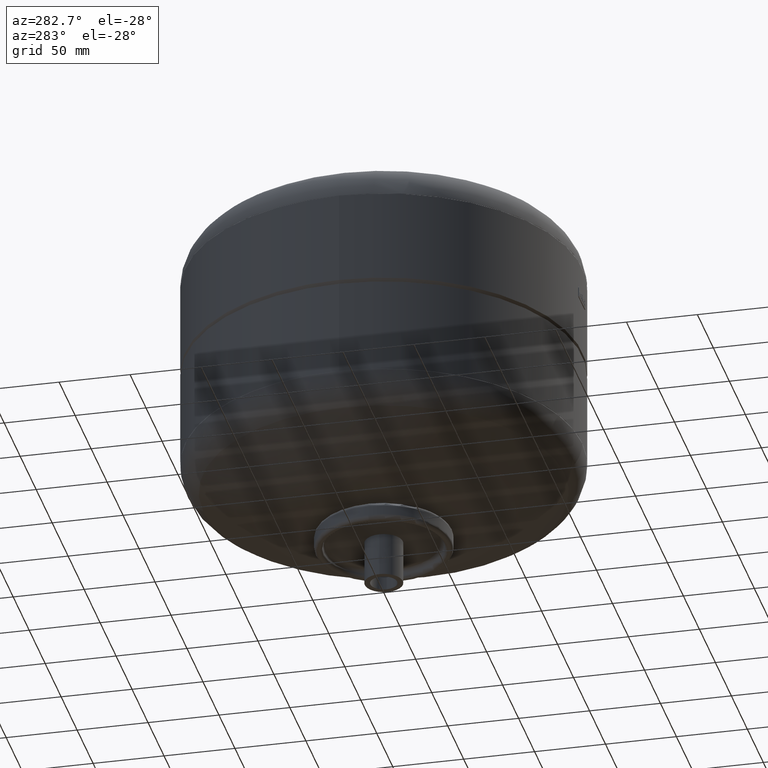
[diagram: clean part render]
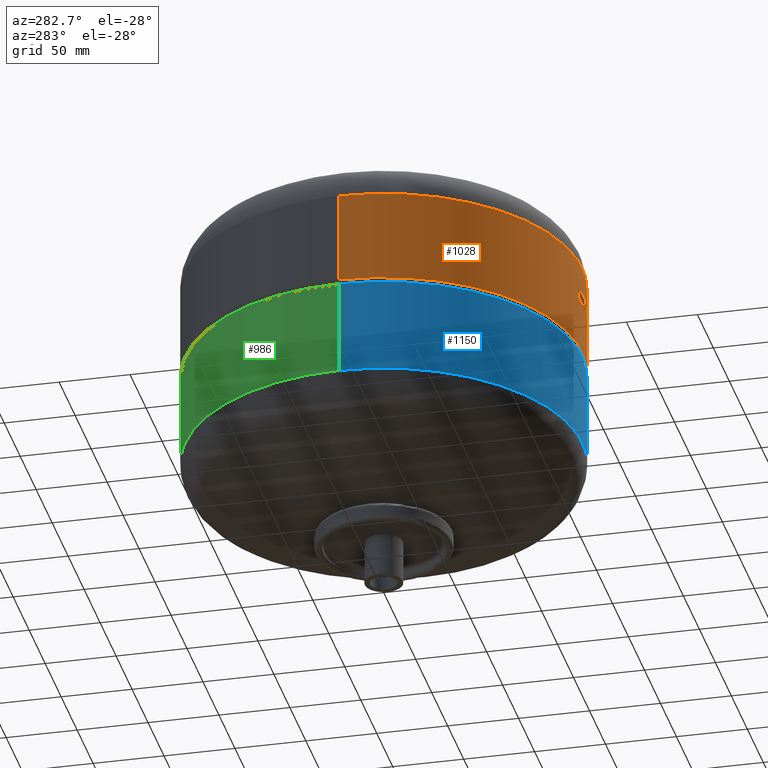
[diagram: same view with three faces highlighted in distinct colors, each labeled with its STEP entity id]
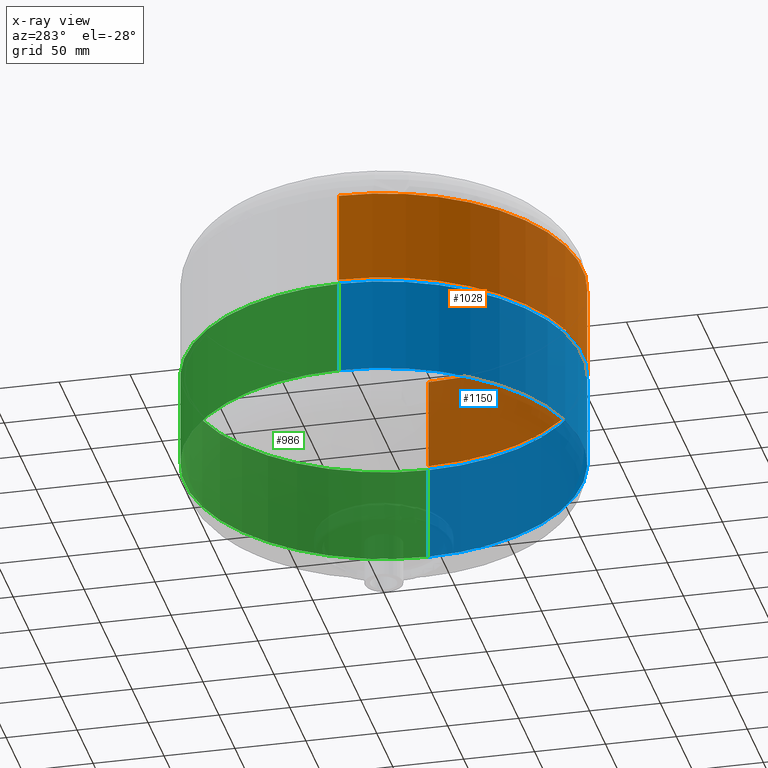
[diagram: x-ray of the same camera — body ghosted, the three highlighted faces saturated]
A machine part, auxiliary view with three faces highlighted in distinct colors.
The next image is the same camera in x-ray (body ghosted, the three faces saturated) — at least one of them is partly hidden behind the body in this view.
Their STEP definitions:

[orange] entity #1028 — the highlighted cylindrical surface (partial cylindrical patch) has radius 140 mm, axis along (0, 0, 1).
#987=CARTESIAN_POINT('',(0.0,0.0,224.0));
#988=DIRECTION('',(0.0,0.0,1.0));
#989=DIRECTION('',(1.0,0.0,0.0));
#990=AXIS2_PLACEMENT_3D('',#987,#988,#989);
#991=CYLINDRICAL_SURFACE('',#990,140.0);
#992=CARTESIAN_POINT('',(140.0,0.0,229.0));
#993=VERTEX_POINT('',#992);
#994=CARTESIAN_POINT('',(140.0,0.0,163.499999999999970));
#995=VERTEX_POINT('',#994);
#996=CARTESIAN_POINT('',(140.0,0.0,229.0));
#997=DIRECTION('',(0.0,0.0,-1.0));
#998=VECTOR('',#997,65.500000000000028);
#999=LINE('',#996,#998);
#1000=EDGE_CURVE('',#993,#995,#999,.T.);
#1001=ORIENTED_EDGE('',*,*,#1000,.F.);
#1002=CARTESIAN_POINT('',(-140.0,-1.714449E-014,229.0));
#1003=VERTEX_POINT('',#1002);
#1004=CARTESIAN_POINT('',(0.0,0.0,229.0));
#1005=DIRECTION('',(0.0,0.0,-1.0));
#1006=DIRECTION('',(1.0,0.0,0.0));
#1007=AXIS2_PLACEMENT_3D('',#1004,#1005,#1006);
#1008=CIRCLE('',#1007,140.0);
#1009=EDGE_CURVE('',#993,#1003,#1008,.T.);
#1010=ORIENTED_EDGE('',*,*,#1009,.T.);
#1011=CARTESIAN_POINT('',(-139.999999999999970,-1.714449E-014,163.500000000000000));
#1012=VERTEX_POINT('',#1011);
#1013=CARTESIAN_POINT('',(-140.0,-1.714449E-014,229.0));
#1014=DIRECTION('',(0.0,0.0,-1.0));
#1015=VECTOR('',#1014,65.500000000000000);
#1016=LINE('',#1013,#1015);
#1017=EDGE_CURVE('',#1003,#1012,#1016,.T.);
#1018=ORIENTED_EDGE('',*,*,#1017,.T.);
#1019=CARTESIAN_POINT('',(0.0,0.0,163.499999999999970));
#1020=DIRECTION('',(0.0,0.0,1.0));
#1021=DIRECTION('',(1.0,0.0,0.0));
#1022=AXIS2_PLACEMENT_3D('',#1019,#1020,#1021);
#1023=CIRCLE('',#1022,140.0);
#1024=EDGE_CURVE('',#1012,#995,#1023,.T.);
#1025=ORIENTED_EDGE('',*,*,#1024,.T.);
#1026=EDGE_LOOP('',(#1001,#1010,#1018,#1025));
#1027=FACE_OUTER_BOUND('',#1026,.T.);
#1028=ADVANCED_FACE('',(#1027),#991,.T.);

[blue] entity #1150 — the highlighted cylindrical surface (partial cylindrical patch) has radius 140 mm, axis along (0, 0, -1).
#950=CARTESIAN_POINT('',(139.999999999999910,0.0,93.0));
#951=VERTEX_POINT('',#950);
#952=CARTESIAN_POINT('',(139.999999999999970,0.0,160.499999999999970));
#953=VERTEX_POINT('',#952);
#954=CARTESIAN_POINT('',(139.999999999999910,0.0,93.0));
#955=DIRECTION('',(0.0,0.0,1.0));
#956=VECTOR('',#955,67.499999999999972);
#957=LINE('',#954,#956);
#958=EDGE_CURVE('',#951,#953,#957,.T.);
#960=CARTESIAN_POINT('',(-139.999999999999910,1.714449E-014,93.0));
#961=VERTEX_POINT('',#960);
#969=CARTESIAN_POINT('',(-139.999999999999910,1.714449E-014,160.499999999999970));
#970=VERTEX_POINT('',#969);
#971=CARTESIAN_POINT('',(-139.999999999999910,1.714449E-014,93.0));
#972=DIRECTION('',(0.0,0.0,1.0));
#973=VECTOR('',#972,67.499999999999972);
#974=LINE('',#971,#973);
#975=EDGE_CURVE('',#961,#970,#974,.T.);
#1067=CARTESIAN_POINT('',(0.0,0.0,160.499999999999970));
#1068=DIRECTION('',(0.0,0.0,1.0));
#1069=DIRECTION('',(1.0,0.0,0.0));
#1070=AXIS2_PLACEMENT_3D('',#1067,#1068,#1069);
#1071=CIRCLE('',#1070,139.999999999999970);
#1072=EDGE_CURVE('',#970,#953,#1071,.T.);
#1133=CARTESIAN_POINT('',(0.0,0.0,98.0));
#1134=DIRECTION('',(0.0,0.0,-1.0));
#1135=DIRECTION('',(1.0,0.0,0.0));
#1136=AXIS2_PLACEMENT_3D('',#1133,#1134,#1135);
#1137=CYLINDRICAL_SURFACE('',#1136,139.999999999999910);
#1138=ORIENTED_EDGE('',*,*,#958,.T.);
#1139=ORIENTED_EDGE('',*,*,#1072,.F.);
#1140=ORIENTED_EDGE('',*,*,#975,.F.);
#1141=CARTESIAN_POINT('',(0.0,0.0,93.0));
#1142=DIRECTION('',(0.0,0.0,1.0));
#1143=DIRECTION('',(1.0,0.0,0.0));
#1144=AXIS2_PLACEMENT_3D('',#1141,#1142,#1143);
#1145=CIRCLE('',#1144,139.999999999999910);
#1146=EDGE_CURVE('',#961,#951,#1145,.T.);
#1147=ORIENTED_EDGE('',*,*,#1146,.T.);
#1148=EDGE_LOOP('',(#1138,#1139,#1140,#1147));
#1149=FACE_OUTER_BOUND('',#1148,.T.);
#1150=ADVANCED_FACE('',(#1149),#1137,.T.);

[green] entity #986 — the highlighted cylindrical surface (partial cylindrical patch) has radius 140 mm, axis along (0, 0, -1).
#945=CARTESIAN_POINT('',(0.0,0.0,98.0));
#946=DIRECTION('',(0.0,0.0,-1.0));
#947=DIRECTION('',(1.0,0.0,0.0));
#948=AXIS2_PLACEMENT_3D('',#945,#946,#947);
#949=CYLINDRICAL_SURFACE('',#948,139.999999999999910);
#950=CARTESIAN_POINT('',(139.999999999999910,0.0,93.0));
#951=VERTEX_POINT('',#950);
#952=CARTESIAN_POINT('',(139.999999999999970,0.0,160.499999999999970));
#953=VERTEX_POINT('',#952);
#954=CARTESIAN_POINT('',(139.999999999999910,0.0,93.0));
#955=DIRECTION('',(0.0,0.0,1.0));
#956=VECTOR('',#955,67.499999999999972);
#957=LINE('',#954,#956);
#958=EDGE_CURVE('',#951,#953,#957,.T.);
#959=ORIENTED_EDGE('',*,*,#958,.F.);
#960=CARTESIAN_POINT('',(-139.999999999999910,1.714449E-014,93.0));
#961=VERTEX_POINT('',#960);
#962=CARTESIAN_POINT('',(0.0,0.0,93.0));
#963=DIRECTION('',(0.0,0.0,1.0));
#964=DIRECTION('',(1.0,0.0,0.0));
#965=AXIS2_PLACEMENT_3D('',#962,#963,#964);
#966=CIRCLE('',#965,139.999999999999910);
#967=EDGE_CURVE('',#951,#961,#966,.T.);
#968=ORIENTED_EDGE('',*,*,#967,.T.);
#969=CARTESIAN_POINT('',(-139.999999999999910,1.714449E-014,160.499999999999970));
#970=VERTEX_POINT('',#969);
#971=CARTESIAN_POINT('',(-139.999999999999910,1.714449E-014,93.0));
#972=DIRECTION('',(0.0,0.0,1.0));
#973=VECTOR('',#972,67.499999999999972);
#974=LINE('',#971,#973);
#975=EDGE_CURVE('',#961,#970,#974,.T.);
#976=ORIENTED_EDGE('',*,*,#975,.T.);
#977=CARTESIAN_POINT('',(0.0,0.0,160.499999999999970));
#978=DIRECTION('',(0.0,0.0,1.0));
#979=DIRECTION('',(1.0,0.0,0.0));
#980=AXIS2_PLACEMENT_3D('',#977,#978,#979);
#981=CIRCLE('',#980,139.999999999999970);
#982=EDGE_CURVE('',#953,#970,#981,.T.);
#983=ORIENTED_EDGE('',*,*,#982,.F.);
#984=EDGE_LOOP('',(#959,#968,#976,#983));
#985=FACE_OUTER_BOUND('',#984,.T.);
#986=ADVANCED_FACE('',(#985),#949,.T.);